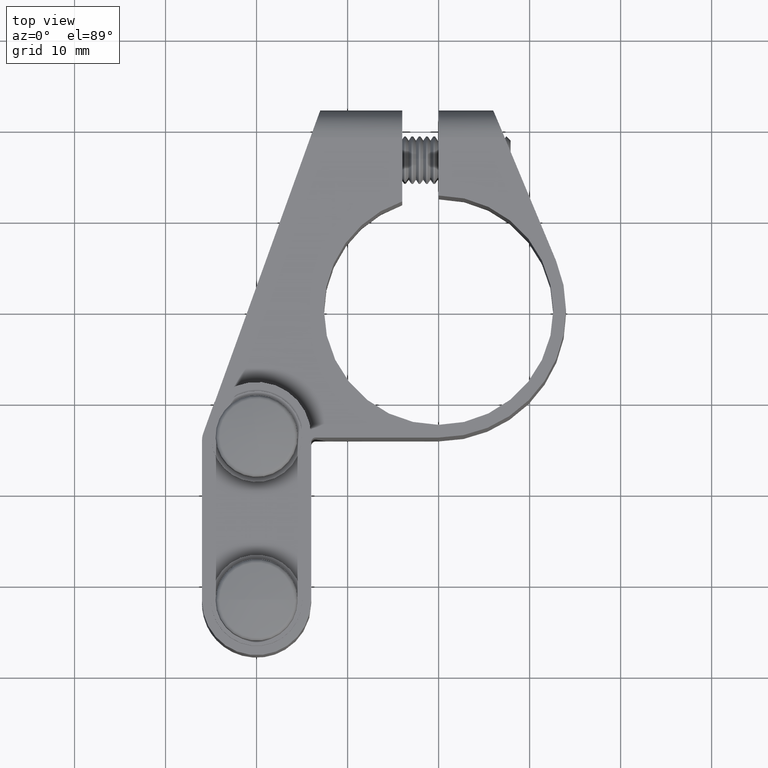
[diagram: clean part render]
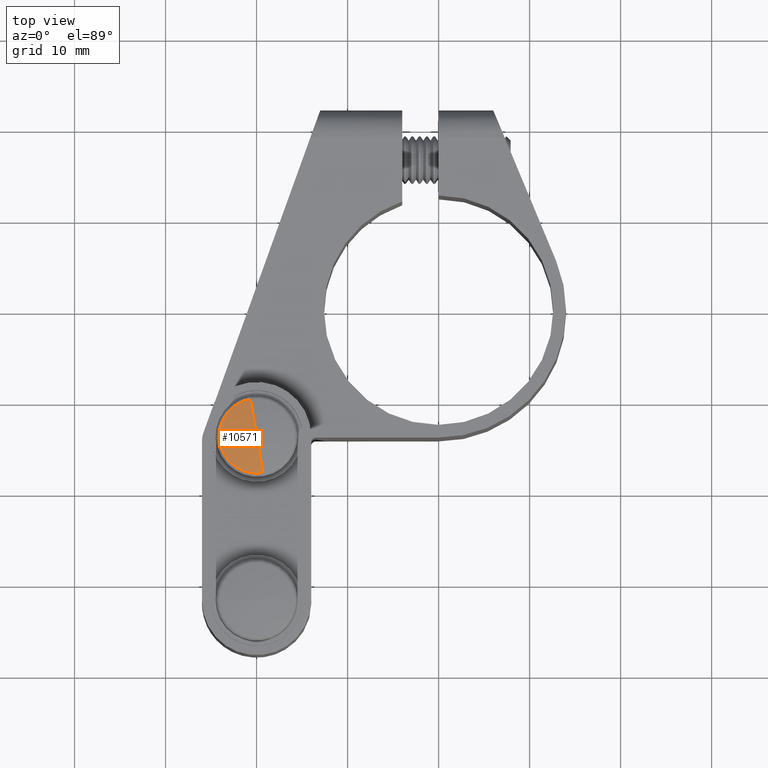
[diagram: same view with one face highlighted and labeled with its STEP entity id]
A machine part, top view. The second image highlights one B-rep face of the part: STEP entity #10571.
In plain terms, the highlighted spherical surface has radius 20 mm.
Its self-contained STEP definition (entity closure, byte-faithful):
#46 = AXIS2_PLACEMENT_3D ( 'NONE', #129, #3300, #10788 ) ;
#129 = CARTESIAN_POINT ( 'NONE',  ( 2.449293598294706500E-015, -8.000000000000005300, 0.0000000000000000000 ) ) ;
#969 = DIRECTION ( 'NONE',  ( 1.000000000000000000, 0.0000000000000000000, 0.0000000000000000000 ) ) ;
#2093 = ORIENTED_EDGE ( 'NONE', *, *, #8655, .T. ) ;
#2116 = EDGE_CURVE ( 'NONE', #17785, #10566, #2234, .T. ) ;
#2234 = CIRCLE ( 'NONE', #46, 20.00000000000000400 ) ;
#2882 = VERTEX_POINT ( 'NONE', #17933 ) ;
#3300 = DIRECTION ( 'NONE',  ( 0.0000000000000000000, 0.0000000000000000000, 1.000000000000000000 ) ) ;
#5534 = CARTESIAN_POINT ( 'NONE',  ( 3.971423507897402800E-015, 11.99999999999999800, 0.0000000000000000000 ) ) ;
#5735 = EDGE_CURVE ( 'NONE', #2882, #10566, #17570, .T. ) ;
#6797 = DIRECTION ( 'NONE',  ( 1.000000000000000000, 0.0000000000000000000, 0.0000000000000000000 ) ) ;
#7032 = DIRECTION ( 'NONE',  ( 0.0000000000000000000, 0.0000000000000000000, -1.000000000000000000 ) ) ;
#7183 = CARTESIAN_POINT ( 'NONE',  ( 4.102564102564102200, 11.57470223999211700, 0.0000000000000000000 ) ) ;
#8465 = FACE_OUTER_BOUND ( 'NONE', #15280, .T. ) ;
#8502 = DIRECTION ( 'NONE',  ( 1.487415552276713300E-017, 1.000000000000000000, -0.0000000000000000000 ) ) ;
#8655 = EDGE_CURVE ( 'NONE', #17785, #2882, #16778, .T. ) ;
#9954 = DIRECTION ( 'NONE',  ( 1.224646799147353200E-016, -1.821558695097669500E-033, -1.000000000000000000 ) ) ;
#10566 = VERTEX_POINT ( 'NONE', #5534 ) ;
#10571 = ADVANCED_FACE ( 'NONE', ( #8465 ), #11736, .T. ) ;
#10788 = DIRECTION ( 'NONE',  ( 1.000000000000000000, 0.0000000000000000000, 0.0000000000000000000 ) ) ;
#11736 = SPHERICAL_SURFACE ( 'NONE', #17758, 20.00000000000000400 ) ;
#12942 = CARTESIAN_POINT ( 'NONE',  ( 2.740450763724207700E-015, 11.57470223999211700, 0.0000000000000000000 ) ) ;
#13041 = CARTESIAN_POINT ( 'NONE',  ( 2.449293598294706500E-015, -8.000000000000005300, 0.0000000000000000000 ) ) ;
#13599 = ORIENTED_EDGE ( 'NONE', *, *, #5735, .T. ) ;
#14065 = AXIS2_PLACEMENT_3D ( 'NONE', #19108, #9954, #18909 ) ;
#14563 = ORIENTED_EDGE ( 'NONE', *, *, #2116, .F. ) ;
#15280 = EDGE_LOOP ( 'NONE', ( #2093, #13599, #14563 ) ) ;
#16778 = CIRCLE ( 'NONE', #16844, 4.102564102564103100 ) ;
#16844 = AXIS2_PLACEMENT_3D ( 'NONE', #12942, #8502, #6797 ) ;
#17570 = CIRCLE ( 'NONE', #14065, 20.00000000000000400 ) ;
#17758 = AXIS2_PLACEMENT_3D ( 'NONE', #13041, #7032, #969 ) ;
#17785 = VERTEX_POINT ( 'NONE', #7183 ) ;
#17933 = CARTESIAN_POINT ( 'NONE',  ( -4.102564102564097800, 11.57470223999211700, -5.024191996501958400E-016 ) ) ;
#18909 = DIRECTION ( 'NONE',  ( -1.000000000000000000, 0.0000000000000000000, -1.224646799147353200E-016 ) ) ;
#19108 = CARTESIAN_POINT ( 'NONE',  ( 2.449293598294706500E-015, -8.000000000000005300, 0.0000000000000000000 ) ) ;